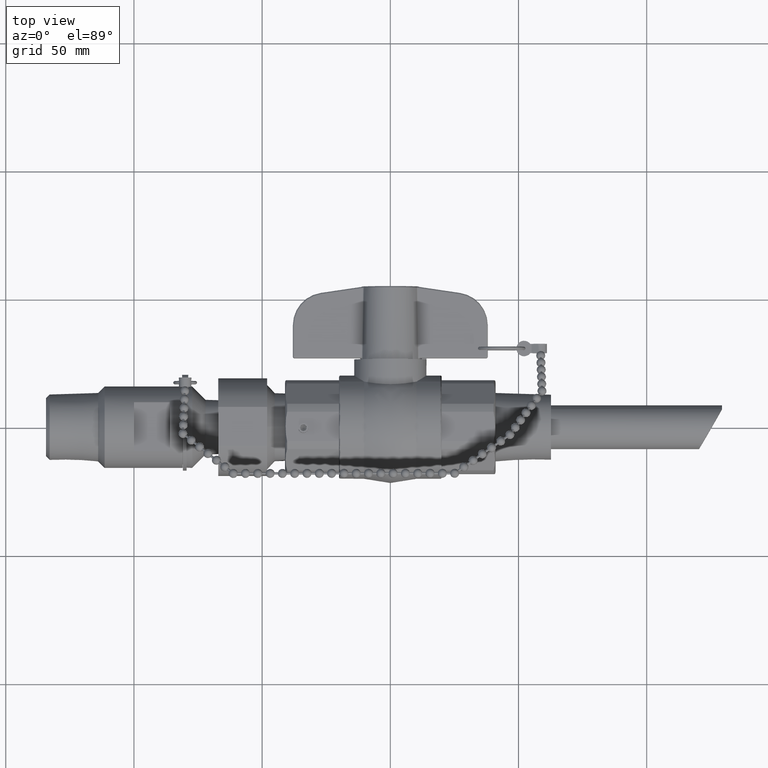
[diagram: clean part render]
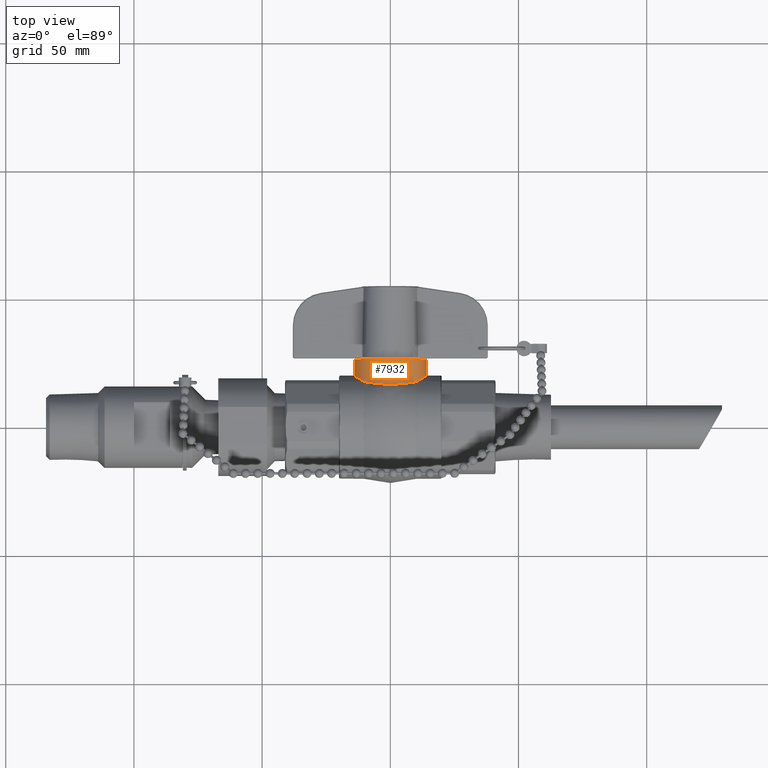
[diagram: same view with one face highlighted and labeled with its STEP entity id]
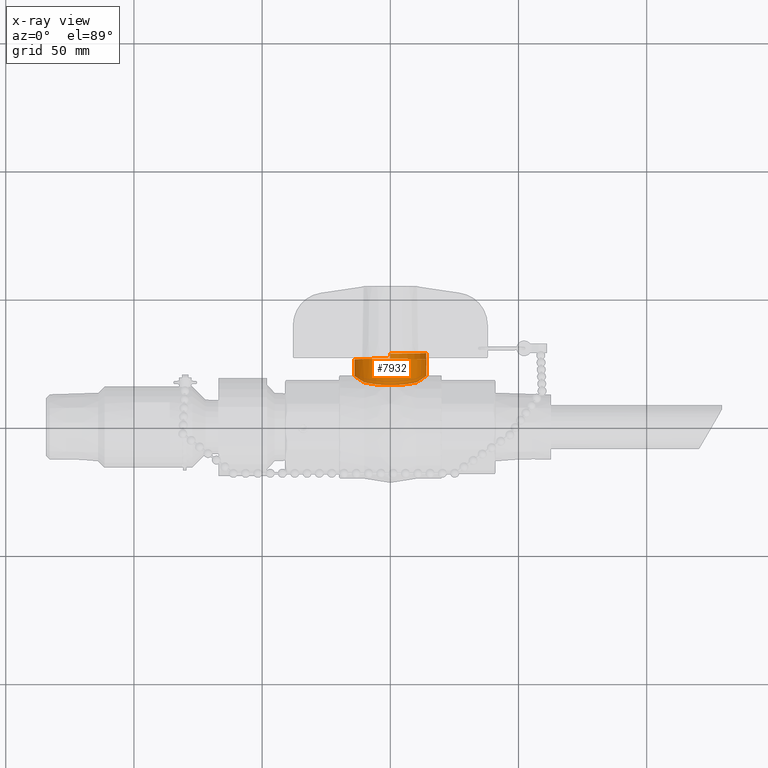
[diagram: x-ray of the same camera — body ghosted, the highlighted face saturated]
A machine part, top view. The second image highlights one B-rep face of the part: STEP entity #7932.
The next image is the same camera in x-ray: the body ghosted, the highlighted face saturated — about 0% of this face is hidden behind the body in this view.
In plain terms, the highlighted cylindrical surface (bore or boss wall) has radius 14.097 mm, axis along (0, -1, 0).
Its self-contained STEP definition (entity closure, byte-faithful):
#5886=CARTESIAN_POINT('',(0.402500000000000,0.694289204870708,-0.382123998199537));
#5887=VERTEX_POINT('',#5886);
#5888=CARTESIAN_POINT('',(0.402500000000000,0.694289204870708,0.382123998199537));
#5889=VERTEX_POINT('',#5888);
#5897=CARTESIAN_POINT('',(-0.402500000000000,0.694289204870708,0.382123998199537));
#5898=VERTEX_POINT('',#5897);
#5899=CARTESIAN_POINT('',(0.402500000000000,0.694289204870708,0.382123998199537));
#5900=CARTESIAN_POINT('',(0.366272588698172,0.686778647582645,0.420283164118689));
#5901=CARTESIAN_POINT('',(0.324757810098894,0.679177186437937,0.453143781187078));
#5902=CARTESIAN_POINT('',(0.239478826389135,0.666854707084221,0.502776451669650));
#5903=CARTESIAN_POINT('',(0.196982512229787,0.661937710556527,0.520915818224183));
#5904=CARTESIAN_POINT('',(0.085503317728400,0.653092031130762,0.552797558933748));
#5905=CARTESIAN_POINT('',(0.015411507061169,0.651153513062656,0.559182555543185));
#5906=CARTESIAN_POINT('',(-0.122132030906957,0.655040054361376,0.545676635481533));
#5907=CARTESIAN_POINT('',(-0.187918665550422,0.660597076469248,0.526596741499948));
#5908=CARTESIAN_POINT('',(-0.306177883503262,0.675827286896050,0.467374758510483));
#5909=CARTESIAN_POINT('',(-0.358259362394635,0.685117369753172,0.428723679769029));
#5910=CARTESIAN_POINT('',(-0.402500000000000,0.694289204870708,0.382123998199537));
#5911=B_SPLINE_CURVE_WITH_KNOTS('',3,(#5899,#5900,#5901,#5902,#5903,#5904,#5905,#5906,#5907,#5908,#5909,#5910),.UNSPECIFIED.,.F.,.U.,(4,2,2,2,2,4),(-2.304971812479363,-1.900047198235023,-1.547459075862200,-1.014315308233466,-0.494589476205239,0.0),.UNSPECIFIED.);
#5912=EDGE_CURVE('',#5889,#5898,#5911,.T.);
#5914=CARTESIAN_POINT('',(-0.402500000000000,0.694289204870708,-0.382123998199537));
#5915=VERTEX_POINT('',#5914);
#5923=CARTESIAN_POINT('',(-0.402500000000000,0.694289204870708,-0.382123998199537));
#5924=CARTESIAN_POINT('',(-0.366272588698172,0.686778647582645,-0.420283164118689));
#5925=CARTESIAN_POINT('',(-0.324757810098893,0.679177186437937,-0.453143781187078));
#5926=CARTESIAN_POINT('',(-0.239478826389136,0.666854707084221,-0.502776451669650));
#5927=CARTESIAN_POINT('',(-0.196982512229788,0.661937710556527,-0.520915818224182));
#5928=CARTESIAN_POINT('',(-0.085503317728400,0.653092031130762,-0.552797558933748));
#5929=CARTESIAN_POINT('',(-0.015411507061169,0.651153513062656,-0.559182555543185));
#5930=CARTESIAN_POINT('',(0.122132030906955,0.655040054361376,-0.545676635481533));
#5931=CARTESIAN_POINT('',(0.187918665550419,0.660597076469248,-0.526596741499950));
#5932=CARTESIAN_POINT('',(0.306177883503264,0.675827286896049,-0.467374758510483));
#5933=CARTESIAN_POINT('',(0.358259362394638,0.685117369753173,-0.428723679769026));
#5934=CARTESIAN_POINT('',(0.402500000000000,0.694289204870708,-0.382123998199537));
#5935=B_SPLINE_CURVE_WITH_KNOTS('',3,(#5923,#5924,#5925,#5926,#5927,#5928,#5929,#5930,#5931,#5932,#5933,#5934),.UNSPECIFIED.,.F.,.U.,(4,2,2,2,2,4),(-2.304971812479319,-1.900047198234974,-1.547459075862153,-1.014315308233422,-0.494589476205212,0.0),.UNSPECIFIED.);
#5936=EDGE_CURVE('',#5915,#5887,#5935,.T.);
#6216=CARTESIAN_POINT('',(6.796790E-017,1.040000000000000,-0.555000000000000));
#6217=VERTEX_POINT('',#6216);
#6224=CARTESIAN_POINT('',(0.555000000000000,1.040000000000000,0.0));
#6225=VERTEX_POINT('',#6224);
#6226=CARTESIAN_POINT('',(0.0,1.040000000000000,0.0));
#6227=DIRECTION('',(0.0,-1.0,0.0));
#6228=DIRECTION('',(-1.0,0.0,0.0));
#6229=AXIS2_PLACEMENT_3D('',#6226,#6227,#6228);
#6230=CIRCLE('',#6229,0.555000000000000);
#6231=EDGE_CURVE('',#6225,#6217,#6230,.T.);
#6248=CARTESIAN_POINT('',(6.796790E-017,1.140000000000000,-0.555000000000000));
#6249=VERTEX_POINT('',#6248);
#6256=CARTESIAN_POINT('',(6.796790E-017,1.040000000000000,-0.555000000000000));
#6257=DIRECTION('',(0.0,1.0,0.0));
#6258=VECTOR('',#6257,0.100000000000000);
#6259=LINE('',#6256,#6258);
#6260=EDGE_CURVE('',#6217,#6249,#6259,.T.);
#6272=CARTESIAN_POINT('',(0.555000000000000,1.058727388252525,6.796790E-017));
#6273=VERTEX_POINT('',#6272);
#6282=CARTESIAN_POINT('',(0.555000000000000,1.040000000000000,6.796790E-017));
#6283=DIRECTION('',(0.0,1.0,0.0));
#6284=VECTOR('',#6283,0.018727388252525);
#6285=LINE('',#6282,#6284);
#6286=EDGE_CURVE('',#6225,#6273,#6285,.T.);
#7713=CARTESIAN_POINT('',(0.402500000000000,0.694289204870708,-0.382123998199537));
#7714=CARTESIAN_POINT('',(0.445991388115991,0.719502449717207,-0.336313518357479));
#7715=CARTESIAN_POINT('',(0.484438606626481,0.744525616476509,-0.279388910762243));
#7716=CARTESIAN_POINT('',(0.525570669144028,0.772102159161733,-0.182115581408095));
#7717=CARTESIAN_POINT('',(0.536675348497231,0.779758645760761,-0.146248570559199));
#7718=CARTESIAN_POINT('',(0.551393112804413,0.789960429895558,-0.073312408489155));
#7719=CARTESIAN_POINT('',(0.555000000000000,0.792500000000000,-0.036241205771124));
#7720=CARTESIAN_POINT('',(0.555000000000000,0.792500000000000,0.036241205771124));
#7721=CARTESIAN_POINT('',(0.551393112804413,0.789960429895558,0.073312408489155));
#7722=CARTESIAN_POINT('',(0.536675348497231,0.779758645760761,0.146248570559199));
#7723=CARTESIAN_POINT('',(0.525570669144028,0.772102159161733,0.182115581408095));
#7724=CARTESIAN_POINT('',(0.484438606626481,0.744525616476509,0.279388910762243));
#7725=CARTESIAN_POINT('',(0.445991388115991,0.719502449717207,0.336313518357479));
#7726=CARTESIAN_POINT('',(0.402500000000000,0.694289204870708,0.382123998199537));
#7727=B_SPLINE_CURVE_WITH_KNOTS('',3,(#7713,#7714,#7715,#7716,#7717,#7718,#7719,#7720,#7721,#7722,#7723,#7724,#7725,#7726),.UNSPECIFIED.,.F.,.U.,(4,2,2,2,2,2,4),(5.610496093869709,6.123577943979999,6.399735931955966,6.675893919931932,6.952051907907898,7.228209895883865,7.741291745994155),.UNSPECIFIED.);
#7728=EDGE_CURVE('',#5887,#5889,#7727,.T.);
#7797=CARTESIAN_POINT('',(-0.402500000000000,0.694289204870708,0.382123998199537));
#7798=CARTESIAN_POINT('',(-0.445991388115991,0.719502449717207,0.336313518357479));
#7799=CARTESIAN_POINT('',(-0.484438606626481,0.744525616476509,0.279388910762243));
#7800=CARTESIAN_POINT('',(-0.525570669144028,0.772102159161733,0.182115581408095));
#7801=CARTESIAN_POINT('',(-0.536675348497231,0.779758645760761,0.146248570559199));
#7802=CARTESIAN_POINT('',(-0.551393112804413,0.789960429895558,0.073312408489155));
#7803=CARTESIAN_POINT('',(-0.555000000000000,0.792500000000000,0.036241205771124));
#7804=CARTESIAN_POINT('',(-0.555000000000000,0.792500000000000,-0.036241205771124));
#7805=CARTESIAN_POINT('',(-0.551393112804413,0.789960429895558,-0.073312408489155));
#7806=CARTESIAN_POINT('',(-0.536675348497231,0.779758645760761,-0.146248570559199));
#7807=CARTESIAN_POINT('',(-0.525570669144028,0.772102159161734,-0.182115581408095));
#7808=CARTESIAN_POINT('',(-0.484438606626481,0.744525616476509,-0.279388910762243));
#7809=CARTESIAN_POINT('',(-0.445991388115991,0.719502449717207,-0.336313518357479));
#7810=CARTESIAN_POINT('',(-0.402500000000000,0.694289204870708,-0.382123998199537));
#7811=B_SPLINE_CURVE_WITH_KNOTS('',3,(#7797,#7798,#7799,#7800,#7801,#7802,#7803,#7804,#7805,#7806,#7807,#7808,#7809,#7810),.UNSPECIFIED.,.F.,.U.,(4,2,2,2,2,2,4),(1.159900147248421,1.672981997358711,1.949139985334678,2.225297973310644,2.501455961286610,2.777613949262577,3.290695799372867),.UNSPECIFIED.);
#7812=EDGE_CURVE('',#5898,#5915,#7811,.T.);
#7892=CARTESIAN_POINT('',(0.0,1.040000000000000,0.0));
#7893=DIRECTION('',(0.0,-1.0,0.0));
#7894=DIRECTION('',(-1.0,0.0,0.0));
#7895=AXIS2_PLACEMENT_3D('',#7892,#7893,#7894);
#7896=CYLINDRICAL_SURFACE('',#7895,0.555000000000000);
#7897=ORIENTED_EDGE('',*,*,#7728,.F.);
#7898=ORIENTED_EDGE('',*,*,#5936,.F.);
#7899=ORIENTED_EDGE('',*,*,#7812,.F.);
#7900=ORIENTED_EDGE('',*,*,#5912,.F.);
#7901=EDGE_LOOP('',(#7897,#7898,#7899,#7900));
#7902=FACE_OUTER_BOUND('',#7901,.T.);
#7903=CARTESIAN_POINT('',(0.551655802034667,1.140000000000000,-0.060834826222229));
#7904=VERTEX_POINT('',#7903);
#7905=CARTESIAN_POINT('',(0.551655802034667,1.058727388252525,-0.060834826222229));
#7906=VERTEX_POINT('',#7905);
#7907=CARTESIAN_POINT('',(0.551655802034667,1.140000000000000,-0.060834826222229));
#7908=DIRECTION('',(0.0,-1.0,0.0));
#7909=VECTOR('',#7908,0.081272611747475);
#7910=LINE('',#7907,#7909);
#7911=EDGE_CURVE('',#7904,#7906,#7910,.T.);
#7912=ORIENTED_EDGE('',*,*,#7911,.T.);
#7913=CARTESIAN_POINT('',(0.0,1.058727388252525,0.0));
#7914=DIRECTION('',(0.0,-1.0,0.0));
#7915=DIRECTION('',(-1.0,0.0,0.0));
#7916=AXIS2_PLACEMENT_3D('',#7913,#7914,#7915);
#7917=CIRCLE('',#7916,0.555000000000000);
#7918=EDGE_CURVE('',#7906,#6273,#7917,.T.);
#7919=ORIENTED_EDGE('',*,*,#7918,.T.);
#7920=ORIENTED_EDGE('',*,*,#6286,.F.);
#7921=ORIENTED_EDGE('',*,*,#6231,.T.);
#7922=ORIENTED_EDGE('',*,*,#6260,.T.);
#7923=CARTESIAN_POINT('',(0.0,1.140000000000000,0.0));
#7924=DIRECTION('',(0.0,-1.0,0.0));
#7925=DIRECTION('',(-1.0,0.0,0.0));
#7926=AXIS2_PLACEMENT_3D('',#7923,#7924,#7925);
#7927=CIRCLE('',#7926,0.555000000000000);
#7928=EDGE_CURVE('',#6249,#7904,#7927,.T.);
#7929=ORIENTED_EDGE('',*,*,#7928,.T.);
#7930=EDGE_LOOP('',(#7912,#7919,#7920,#7921,#7922,#7929));
#7931=FACE_BOUND('',#7930,.T.);
#7932=ADVANCED_FACE('',(#7902,#7931),#7896,.T.);